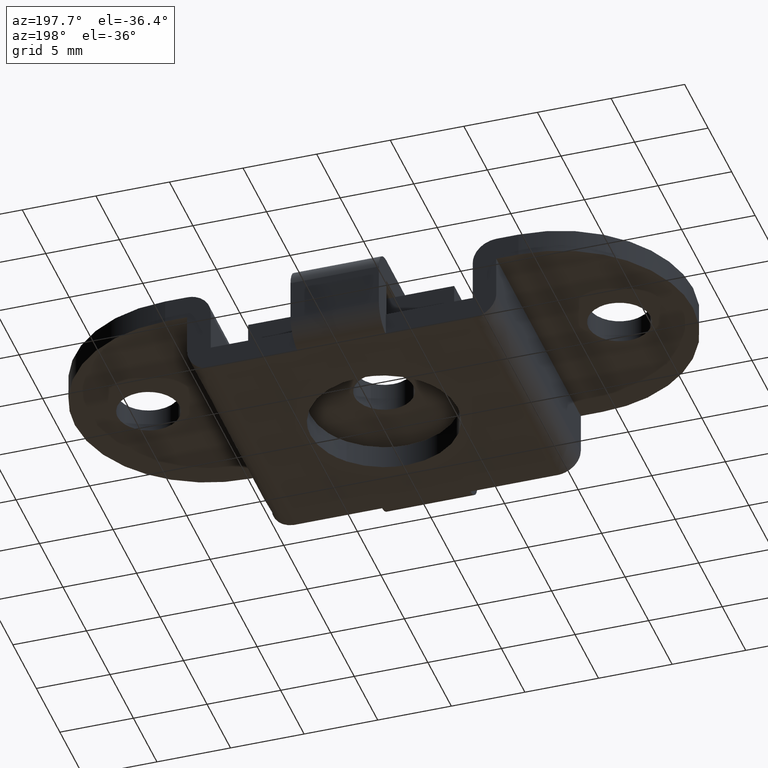
[diagram: clean part render]
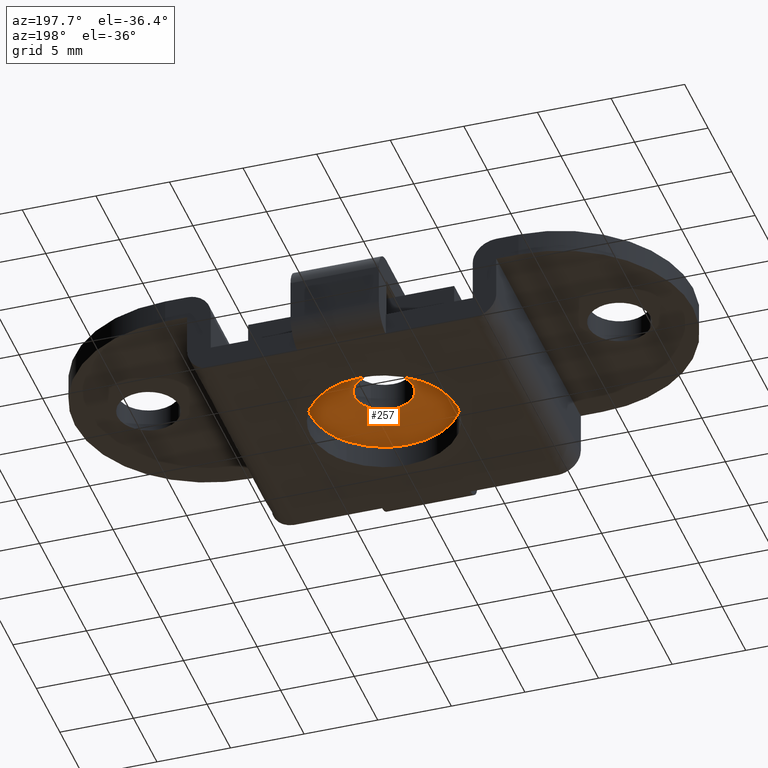
[diagram: same view with one face highlighted and labeled with its STEP entity id]
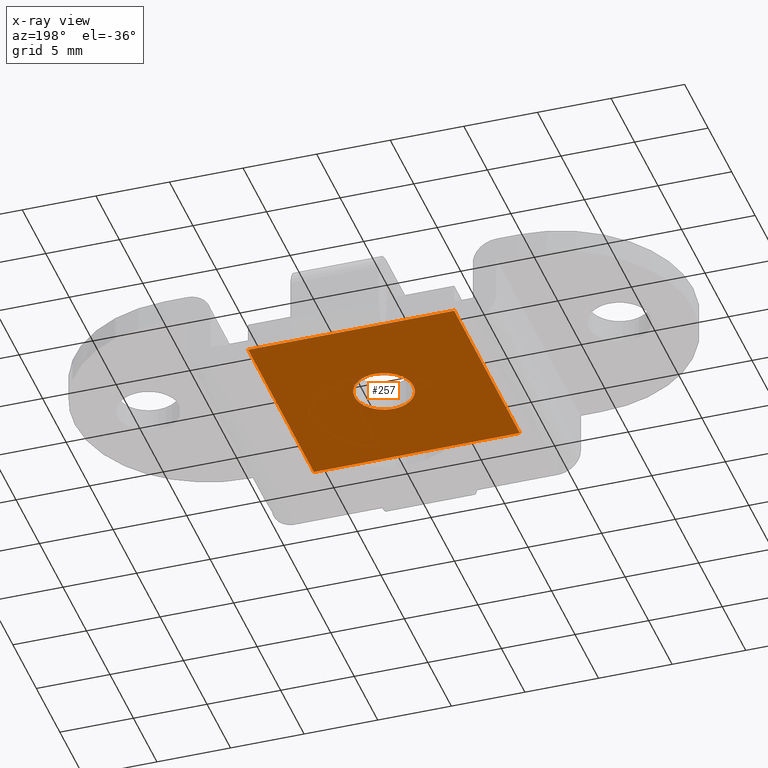
[diagram: x-ray of the same camera — body ghosted, the highlighted face saturated]
A machine part, auxiliary view. The second image highlights one B-rep face of the part: STEP entity #257.
The next image is the same camera in x-ray: the body ghosted, the highlighted face saturated — about 0% of this face is hidden behind the body in this view.
In plain terms, the highlighted face is a freeform B-spline surface patch.
Its self-contained STEP definition (entity closure, byte-faithful):
#23=CARTESIAN_POINT('',(-0.000000518850291,1.999999999999933,2.399999999999960));
#24=VERTEX_POINT('',#23);
#25=CARTESIAN_POINT('',(-1.351180487377265,1.474554782775741,2.399999999997879));
#26=VERTEX_POINT('',#25);
#27=CARTESIAN_POINT('',(-0.000000518850291,1.999999999999933,2.399999999999960));
#28=CARTESIAN_POINT('',(-0.154538455608227,2.000029668242855,2.399999999999715));
#29=CARTESIAN_POINT('',(-0.394053000663040,1.972096767028142,2.399999999999366));
#30=CARTESIAN_POINT('',(-0.742171634386432,1.866098867655892,2.399999999998820));
#31=CARTESIAN_POINT('',(-1.049318169099044,1.716970663739626,2.399999999998329));
#32=CARTESIAN_POINT('',(-1.254346569644623,1.563309476412577,2.399999999998034));
#33=CARTESIAN_POINT('',(-1.351180487377265,1.474554782775741,2.399999999997879));
#34=B_SPLINE_CURVE_WITH_KNOTS('',3,(#27,#28,#29,#30,#31,#32,#33),.UNSPECIFIED.,.F.,.U.,(4,1,1,1,4),(0.000000010569029,0.463607543712955,0.718595566548585,1.089472572939475,1.483537675720175),.UNSPECIFIED.);
#35=EDGE_CURVE('',#24,#26,#34,.T.);
#37=CARTESIAN_POINT('',(2.0,0.0,2.399999999999960));
#38=VERTEX_POINT('',#37);
#39=CARTESIAN_POINT('',(2.0,0.0,2.399999999999960));
#40=CARTESIAN_POINT('',(2.000112811049509,0.212722985895526,2.399999999999962));
#41=CARTESIAN_POINT('',(1.938066859253073,0.597173766219918,2.399999999999958));
#42=CARTESIAN_POINT('',(1.705829796755436,1.080482220759232,2.399999999999963));
#43=CARTESIAN_POINT('',(1.449928548627279,1.392233175833231,2.399999999999962));
#44=CARTESIAN_POINT('',(1.183041145470563,1.622441176045252,2.399999999999956));
#45=CARTESIAN_POINT('',(0.869488104492679,1.818356002422440,2.399999999999952));
#46=CARTESIAN_POINT('',(0.458147712116395,1.965536122072617,2.400000000000004));
#47=CARTESIAN_POINT('',(0.147260596023691,2.000017816631368,2.399999999999920));
#48=CARTESIAN_POINT('',(-0.000000518850291,1.999999999999933,2.399999999999960));
#49=B_SPLINE_CURVE_WITH_KNOTS('',3,(#39,#40,#41,#42,#43,#44,#45,#46,#47,#48),.UNSPECIFIED.,.F.,.U.,(4,1,1,1,1,1,1,4),(0.000000047114152,0.638138985832025,1.153568385998532,1.595335961686534,1.840778867829446,2.208945143232914,2.699826096089112,3.141612658188444),.UNSPECIFIED.);
#50=EDGE_CURVE('',#38,#24,#49,.T.);
#52=CARTESIAN_POINT('',(1.351180487377271,-1.474554782775748,2.399999999997879));
#53=VERTEX_POINT('',#52);
#54=CARTESIAN_POINT('',(1.351180487377271,-1.474554782775748,2.399999999997879));
#55=CARTESIAN_POINT('',(1.459426381954032,-1.375384471031508,2.399999999998019));
#56=CARTESIAN_POINT('',(1.676874063692945,-1.126938949343517,2.399999999998369));
#57=CARTESIAN_POINT('',(1.863430724474899,-0.762255966551283,2.399999999998882));
#58=CARTESIAN_POINT('',(1.975154187426157,-0.371323649118810,2.399999999999443));
#59=CARTESIAN_POINT('',(2.000025747784341,-0.146810579186120,2.399999999999741));
#60=CARTESIAN_POINT('',(2.0,0.0,2.399999999999960));
#61=B_SPLINE_CURVE_WITH_KNOTS('',3,(#54,#55,#56,#57,#58,#59,#60),.UNSPECIFIED.,.F.,.U.,(4,1,1,1,4),(0.000000014151142,0.440426449918752,0.984479024001209,1.217648019374029,1.658074455133207),.UNSPECIFIED.);
#62=EDGE_CURVE('',#53,#38,#61,.T.);
#136=CARTESIAN_POINT('',(-2.0,0.0,2.399999999999960));
#137=VERTEX_POINT('',#136);
#138=CARTESIAN_POINT('',(-1.351180487377265,1.474554782775741,2.399999999997879));
#139=CARTESIAN_POINT('',(-1.459426418340748,1.375384425304508,2.399999999998019));
#140=CARTESIAN_POINT('',(-1.676873994566897,1.126939026374724,2.399999999998374));
#141=CARTESIAN_POINT('',(-1.863430775019708,0.762255907502644,2.399999999998875));
#142=CARTESIAN_POINT('',(-1.975154149039837,0.371323664645187,2.399999999999454));
#143=CARTESIAN_POINT('',(-2.000025779455341,0.146810563495107,2.399999999999734));
#144=CARTESIAN_POINT('',(-2.0,0.0,2.399999999999960));
#145=B_SPLINE_CURVE_WITH_KNOTS('',3,(#138,#139,#140,#141,#142,#143,#144),.UNSPECIFIED.,.F.,.U.,(4,1,1,1,4),(0.000000014151274,0.440426449918838,0.984479024001263,1.217648019374061,1.658074455133202),.UNSPECIFIED.);
#146=EDGE_CURVE('',#26,#137,#145,.T.);
#186=CARTESIAN_POINT('',(0.000000518850326,-1.999999999999933,2.399999999999960));
#187=VERTEX_POINT('',#186);
#188=CARTESIAN_POINT('',(0.000000518850326,-1.999999999999933,2.399999999999960));
#189=CARTESIAN_POINT('',(0.146810791480698,-2.000025568333965,2.399999999999733));
#190=CARTESIAN_POINT('',(0.378600850901820,-1.974357414015383,2.399999999999382));
#191=CARTESIAN_POINT('',(0.727926601037321,-1.872410256550064,2.399999999998841));
#192=CARTESIAN_POINT('',(1.043108043792551,-1.721633247028449,2.399999999998340));
#193=CARTESIAN_POINT('',(1.254344808451752,-1.563306870498503,2.399999999998038));
#194=CARTESIAN_POINT('',(1.351180487377271,-1.474554782775748,2.399999999997879));
#195=B_SPLINE_CURVE_WITH_KNOTS('',3,(#188,#189,#190,#191,#192,#193,#194),.UNSPECIFIED.,.F.,.U.,(4,1,1,1,4),(0.000000010568999,0.440425851236684,0.695413484036327,1.089472572939439,1.483537675720142),.UNSPECIFIED.);
#196=EDGE_CURVE('',#187,#53,#195,.T.);
#198=CARTESIAN_POINT('',(-2.0,0.0,2.399999999999960));
#199=CARTESIAN_POINT('',(-2.000131493259190,-0.212733535632238,2.399999999999956));
#200=CARTESIAN_POINT('',(-1.951227538272737,-0.515349816927043,2.399999999999960));
#201=CARTESIAN_POINT('',(-1.781190213231993,-0.933075919762864,2.399999999999960));
#202=CARTESIAN_POINT('',(-1.587429216960834,-1.239051952288212,2.399999999999961));
#203=CARTESIAN_POINT('',(-1.268158829890387,-1.570365111276468,2.399999999999957));
#204=CARTESIAN_POINT('',(-0.885718461523987,-1.815848769717640,2.399999999999972));
#205=CARTESIAN_POINT('',(-0.433591724961193,-1.968231006649998,2.399999999999930));
#206=CARTESIAN_POINT('',(-0.147262423589870,-2.000022840526504,2.399999999999978));
#207=CARTESIAN_POINT('',(0.000000518850326,-1.999999999999933,2.399999999999960));
#208=B_SPLINE_CURVE_WITH_KNOTS('',3,(#198,#199,#200,#201,#202,#203,#204,#205,#206,#207),.UNSPECIFIED.,.F.,.U.,(4,1,1,1,1,1,1,4),(0.000000047113517,0.638138985831433,0.908123566729669,1.349914260320921,1.718068675593460,2.282577635544291,2.699826096089002,3.141612658188471),.UNSPECIFIED.);
#209=EDGE_CURVE('',#137,#187,#208,.T.);
#214=CARTESIAN_POINT('',(-7.699299972865284,7.699299972865378,2.400000000000000));
#215=CARTESIAN_POINT('',(7.699300348374545,7.699299972865378,2.400000000000000));
#216=CARTESIAN_POINT('',(-7.699299972865284,-7.699300348374552,2.400000000000000));
#217=CARTESIAN_POINT('',(7.699300348374545,-7.699300348374552,2.400000000000000));
#218=B_SPLINE_SURFACE_WITH_KNOTS('',1,1,((#214,#216),(#215,#217)),.UNSPECIFIED.,.F.,.F.,.U.,(2,2),(2,2),(0.0,15.398600321239829),(0.0,15.398600321239931),.UNSPECIFIED.);
#219=CARTESIAN_POINT('',(7.0,-7.0,2.399999999999960));
#220=VERTEX_POINT('',#219);
#221=CARTESIAN_POINT('',(7.0,7.000000000000091,2.399999999999960));
#222=VERTEX_POINT('',#221);
#223=CARTESIAN_POINT('',(7.0,-7.0,2.399999999999960));
#224=CARTESIAN_POINT('',(7.0,7.000000000000091,2.399999999999960));
#225=QUASI_UNIFORM_CURVE('',1,(#223,#224),.UNSPECIFIED.,.F.,.U.);
#226=EDGE_CURVE('',#220,#222,#225,.T.);
#227=ORIENTED_EDGE('',*,*,#226,.F.);
#228=CARTESIAN_POINT('',(-7.0,-7.0,2.399999999999960));
#229=VERTEX_POINT('',#228);
#230=CARTESIAN_POINT('',(-7.0,-7.0,2.399999999999960));
#231=CARTESIAN_POINT('',(7.0,-7.0,2.399999999999960));
#232=QUASI_UNIFORM_CURVE('',1,(#230,#231),.UNSPECIFIED.,.F.,.U.);
#233=EDGE_CURVE('',#229,#220,#232,.T.);
#234=ORIENTED_EDGE('',*,*,#233,.F.);
#235=CARTESIAN_POINT('',(-7.0,7.000000000000091,2.399999999999960));
#236=VERTEX_POINT('',#235);
#237=CARTESIAN_POINT('',(-7.0,7.000000000000091,2.399999999999960));
#238=CARTESIAN_POINT('',(-7.0,-7.0,2.399999999999960));
#239=QUASI_UNIFORM_CURVE('',1,(#237,#238),.UNSPECIFIED.,.F.,.U.);
#240=EDGE_CURVE('',#236,#229,#239,.T.);
#241=ORIENTED_EDGE('',*,*,#240,.F.);
#242=CARTESIAN_POINT('',(7.0,7.000000000000091,2.399999999999960));
#243=CARTESIAN_POINT('',(-7.0,7.000000000000091,2.399999999999960));
#244=QUASI_UNIFORM_CURVE('',1,(#242,#243),.UNSPECIFIED.,.F.,.U.);
#245=EDGE_CURVE('',#222,#236,#244,.T.);
#246=ORIENTED_EDGE('',*,*,#245,.F.);
#247=EDGE_LOOP('',(#227,#234,#241,#246));
#248=FACE_OUTER_BOUND('',#247,.T.);
#249=ORIENTED_EDGE('',*,*,#209,.T.);
#250=ORIENTED_EDGE('',*,*,#196,.T.);
#251=ORIENTED_EDGE('',*,*,#62,.T.);
#252=ORIENTED_EDGE('',*,*,#50,.T.);
#253=ORIENTED_EDGE('',*,*,#35,.T.);
#254=ORIENTED_EDGE('',*,*,#146,.T.);
#255=EDGE_LOOP('',(#249,#250,#251,#252,#253,#254));
#256=FACE_BOUND('',#255,.T.);
#257=ADVANCED_FACE('',(#248,#256),#218,.T.);